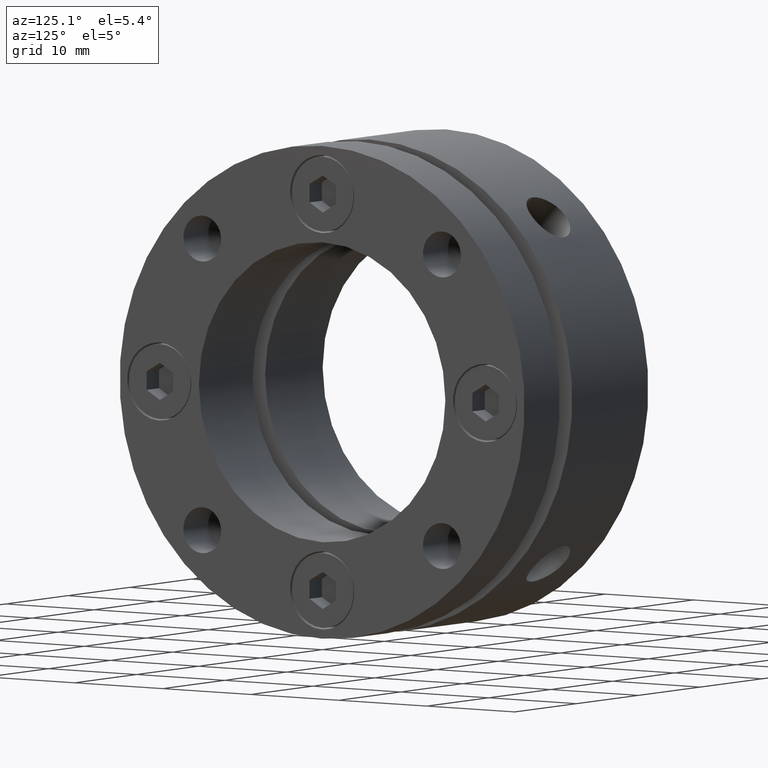
[diagram: clean part render]
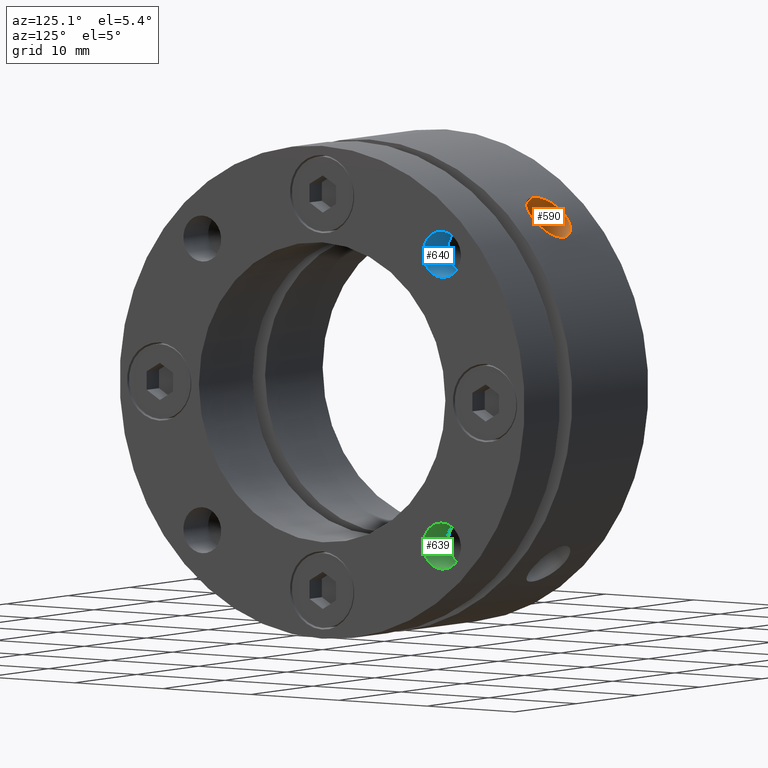
[diagram: same view with three faces highlighted in distinct colors, each labeled with its STEP entity id]
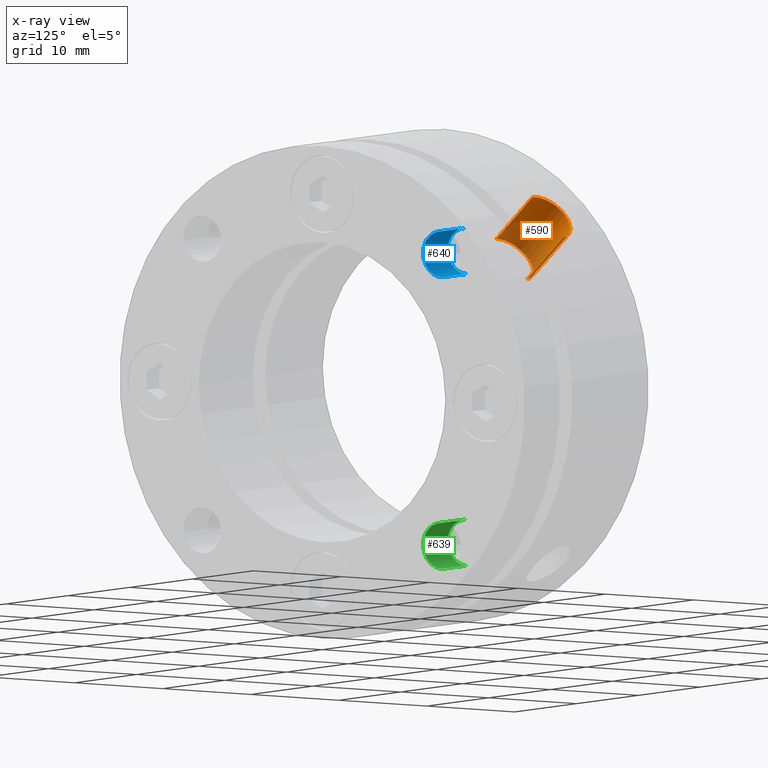
[diagram: x-ray of the same camera — body ghosted, the three highlighted faces saturated]
A machine part, auxiliary view with three faces highlighted in distinct colors.
The next image is the same camera in x-ray (body ghosted, the three faces saturated) — at least one of them is partly hidden behind the body in this view.
Their STEP definitions:

[orange] entity #590 — the highlighted cylindrical surface (edge-blend (fillet) strip) has radius 2.5 mm, axis along (0, 0.7071, 0.7071).
#190 = CIRCLE ( 'NONE', #2259, 2.500000000000000000 ) ;
#194 = LINE ( 'NONE', #756, #202 ) ;
#202 = VECTOR ( 'NONE', #754, 1000.000000000000000 ) ;
#204 = LINE ( 'NONE', #762, #210 ) ;
#210 = VECTOR ( 'NONE', #764, 1000.000000000000000 ) ;
#590 = ADVANCED_FACE ( 'NONE', ( #1877 ), #1889, .F. ) ;
#754 = DIRECTION ( 'NONE',  ( 0.0000000000000000000, 0.7071067811865480200, 0.7071067811865470200 ) ) ;
#756 = CARTESIAN_POINT ( 'NONE',  ( 6.499999999999992900, 15.90990257669731500, 12.37436867076457900 ) ) ;
#757 = CARTESIAN_POINT ( 'NONE',  ( 6.499999999999992900, 12.02081528017130400, 12.02081528017130600 ) ) ;
#758 = DIRECTION ( 'NONE',  ( 0.0000000000000000000, 0.7071067811865480200, 0.7071067811865470200 ) ) ;
#759 = DIRECTION ( 'NONE',  ( 0.0000000000000000000, -0.7071067811865471300, 0.7071067811865477900 ) ) ;
#762 = CARTESIAN_POINT ( 'NONE',  ( 6.499999999999992900, 12.37436867076458000, 15.90990257669731800 ) ) ;
#764 = DIRECTION ( 'NONE',  ( 0.0000000000000000000, 0.7071067811865480200, 0.7071067811865470200 ) ) ;
#1550 = EDGE_CURVE ( 'NONE', #2061, #2039, #2201, .T. ) ;
#1584 = VERTEX_POINT ( 'NONE', #3460 ) ;
#1735 = EDGE_LOOP ( 'NONE', ( #2428, #2416, #2411, #2419 ) ) ;
#1877 = FACE_OUTER_BOUND ( 'NONE', #1735, .T. ) ;
#1889 = CYLINDRICAL_SURFACE ( 'NONE', #2763, 2.500000000000000900 ) ;
#2039 = VERTEX_POINT ( 'NONE', #3504 ) ;
#2061 = VERTEX_POINT ( 'NONE', #3509 ) ;
#2084 = VERTEX_POINT ( 'NONE', #3514 ) ;
#2173 = EDGE_CURVE ( 'NONE', #1584, #2084, #190, .T. ) ;
#2174 = EDGE_CURVE ( 'NONE', #1584, #2039, #194, .T. ) ;
#2176 = EDGE_CURVE ( 'NONE', #2084, #2061, #204, .T. ) ;
#2201 = B_SPLINE_CURVE_WITH_KNOTS ( 'NONE', 3,
 ( #3396, #3390, #3389, #3398, #3399, #3400, #3401, #3402, #3403, #3404, #3405, #3406, #3407, #3408, #3409, #3410, #3411, #3412, #3413, #3414, #3415, #3416, #3417, #3418, #3419, #3420, #3421, #3422, #3423, #3424, #3425, #3426, #3427, #3428 ),
 .UNSPECIFIED., .F., .F.,
 ( 4, 2, 2, 2, 2, 2, 2, 2, 2, 2, 2, 2, 2, 2, 2, 2, 4 ),
 ( 0.01173203666589973600, 0.01222079723062375100, 0.01270955779534776500, 0.01319831836007178000, 0.01368707892479579400, 0.01417583948951980900, 0.01466460005424382500, 0.01515336061896784000, 0.01564212118369185500, 0.01613088174841586700, 0.01661964231313988300, 0.01710840287786389800, 0.01759716344258791300, 0.01808592400731192500, 0.01857468457203594000, 0.01906344513675995600, 0.01955220570148397100 ),
 .UNSPECIFIED. ) ;
#2259 = AXIS2_PLACEMENT_3D ( 'NONE', #757, #758, #759 ) ;
#2411 = ORIENTED_EDGE ( 'NONE', *, *, #1550, .F. ) ;
#2416 = ORIENTED_EDGE ( 'NONE', *, *, #2174, .T. ) ;
#2419 = ORIENTED_EDGE ( 'NONE', *, *, #2176, .F. ) ;
#2428 = ORIENTED_EDGE ( 'NONE', *, *, #2173, .F. ) ;
#2763 = AXIS2_PLACEMENT_3D ( 'NONE', #2834, #2832, #2830 ) ;
#2830 = DIRECTION ( 'NONE',  ( 0.0000000000000000000, -0.7071067811865469100, 0.7071067811865482400 ) ) ;
#2832 = DIRECTION ( 'NONE',  ( 0.0000000000000000000, 0.7071067811865480200, 0.7071067811865470200 ) ) ;
#2834 = CARTESIAN_POINT ( 'NONE',  ( 6.499999999999992900, 14.14213562373094900, 14.14213562373094700 ) ) ;
#3389 = CARTESIAN_POINT ( 'NONE',  ( 6.171102901603271500, 14.41216090793918700, 17.92458236981219600 ) ) ;
#3390 = CARTESIAN_POINT ( 'NONE',  ( 6.336840459598379400, 14.39932926125837300, 17.93486316719110700 ) ) ;
#3396 = CARTESIAN_POINT ( 'NONE',  ( 6.499999999999992900, 14.39932926125837700, 17.93486316719111100 ) ) ;
#3398 = CARTESIAN_POINT ( 'NONE',  ( 5.850465051990689800, 14.46225276498936700, 17.88419078767809000 ) ) ;
#3399 = CARTESIAN_POINT ( 'NONE',  ( 5.694608925028116900, 14.49924360081081800, 17.85429659411093800 ) ) ;
#3400 = CARTESIAN_POINT ( 'NONE',  ( 5.391866361067417100, 14.59687094377545300, 17.77456977023350900 ) ) ;
#3401 = CARTESIAN_POINT ( 'NONE',  ( 5.245693593263251100, 14.65762908045115500, 17.72462032379313600 ) ) ;
#3402 = CARTESIAN_POINT ( 'NONE',  ( 4.975037160429696600, 14.79721221434494200, 17.60825847624769100 ) ) ;
#3403 = CARTESIAN_POINT ( 'NONE',  ( 4.848797256688280700, 14.87656166324814700, 17.54142540692781400 ) ) ;
#3404 = CARTESIAN_POINT ( 'NONE',  ( 4.615486003709182100, 15.05427292907757700, 17.38915060617047800 ) ) ;
#3405 = CARTESIAN_POINT ( 'NONE',  ( 4.512194291995237800, 15.14973626805983600, 17.30618008855913100 ) ) ;
#3406 = CARTESIAN_POINT ( 'NONE',  ( 4.331248595438681000, 15.35268844401171900, 17.12639295912939700 ) ) ;
#3407 = CARTESIAN_POINT ( 'NONE',  ( 4.252965674583988300, 15.46144843888305300, 17.02840453041887200 ) ) ;
#3408 = CARTESIAN_POINT ( 'NONE',  ( 4.127586607234826000, 15.68441056547584500, 16.82326406775506600 ) ) ;
#3409 = CARTESIAN_POINT ( 'NONE',  ( 4.080308539167020900, 15.79812566890847400, 16.71660624396046300 ) ) ;
#3410 = CARTESIAN_POINT ( 'NONE',  ( 4.016348914198122300, 16.02960746437178900, 16.49476836770977400 ) ) ;
#3411 = CARTESIAN_POINT ( 'NONE',  ( 3.999881091137385900, 16.14789131451339800, 16.37903889859849500 ) ) ;
#3412 = CARTESIAN_POINT ( 'NONE',  ( 4.000120217522239200, 16.38157850645534100, 16.14531494842948300 ) ) ;
#3413 = CARTESIAN_POINT ( 'NONE',  ( 4.016461892319392200, 16.49519475888739400, 16.02916398250377500 ) ) ;
#3414 = CARTESIAN_POINT ( 'NONE',  ( 4.080253025106302700, 16.71637913028129300, 15.79836120881904200 ) ) ;
#3415 = CARTESIAN_POINT ( 'NONE',  ( 4.128487812702765300, 16.82507034814032900, 15.68247214119517000 ) ) ;
#3416 = CARTESIAN_POINT ( 'NONE',  ( 4.254195086601696700, 17.03007860652548200, 15.45960372502466700 ) ) ;
#3417 = CARTESIAN_POINT ( 'NONE',  ( 4.331076147975760900, 17.12624316824564400, 15.35285949734156400 ) ) ;
#3418 = CARTESIAN_POINT ( 'NONE',  ( 4.512660700614278900, 17.30662192348992100, 15.14923553848080000 ) ) ;
#3419 = CARTESIAN_POINT ( 'NONE',  ( 4.618243013717113300, 17.39107269779781700, 15.05204047201509000 ) ) ;
#3420 = CARTESIAN_POINT ( 'NONE',  ( 4.848826217899987700, 17.54132013783785400, 14.87667367972937700 ) ) ;
#3421 = CARTESIAN_POINT ( 'NONE',  ( 4.974655792185040500, 17.60815476262315100, 14.79734061598587900 ) ) ;
#3422 = CARTESIAN_POINT ( 'NONE',  ( 5.247992481309276900, 17.72554800207590700, 14.65651225483390100 ) ) ;
#3423 = CARTESIAN_POINT ( 'NONE',  ( 5.393328429897668900, 17.77497907359862200, 14.59637062372967800 ) ) ;
#3424 = CARTESIAN_POINT ( 'NONE',  ( 5.694133033975091100, 17.85414691956000900, 14.49942599646322000 ) ) ;
#3425 = CARTESIAN_POINT ( 'NONE',  ( 5.851830797393867900, 17.88446681320556000, 14.46191152070790400 ) ) ;
#3426 = CARTESIAN_POINT ( 'NONE',  ( 6.174565697121749100, 17.92491304055546000, 14.41174973811161000 ) ) ;
#3427 = CARTESIAN_POINT ( 'NONE',  ( 6.336840169103265200, 17.93486316719111400, 14.39932926125837300 ) ) ;
#3428 = CARTESIAN_POINT ( 'NONE',  ( 6.499999999999992900, 17.93486316719111400, 14.39932926125837100 ) ) ;
#3460 = CARTESIAN_POINT ( 'NONE',  ( 6.499999999999992900, 13.78858223070574200, 10.25304832963686500 ) ) ;
#3504 = CARTESIAN_POINT ( 'NONE',  ( 6.499999999999992900, 17.93486316719111400, 14.39932926125837100 ) ) ;
#3509 = CARTESIAN_POINT ( 'NONE',  ( 6.499999999999992900, 14.39932926125837700, 17.93486316719111100 ) ) ;
#3514 = CARTESIAN_POINT ( 'NONE',  ( 6.499999999999992900, 10.25304832963686900, 13.78858223070574400 ) ) ;

[blue] entity #640 — the highlighted cylindrical surface (edge-blend (fillet) strip) has radius 2.15 mm, axis along (1, 0, 0).
#179 = CIRCLE ( 'NONE', #2300, 2.150000000000000800 ) ;
#185 = CIRCLE ( 'NONE', #2301, 2.150000000000000800 ) ;
#217 = LINE ( 'NONE', #998, #223 ) ;
#223 = VECTOR ( 'NONE', #988, 1000.000000000000000 ) ;
#400 = LINE ( 'NONE', #931, #411 ) ;
#411 = VECTOR ( 'NONE', #937, 1000.000000000000000 ) ;
#640 = ADVANCED_FACE ( 'NONE', ( #1978 ), #1987, .F. ) ;
#931 = CARTESIAN_POINT ( 'NONE',  ( 17.99999999999999600, 13.61180553784104300, 15.76180553784104000 ) ) ;
#937 = DIRECTION ( 'NONE',  ( 1.000000000000000000, 0.0000000000000000000, 0.0000000000000000000 ) ) ;
#951 = CARTESIAN_POINT ( 'NONE',  ( 19.99999999999999600, 13.61180553784104300, 13.61180553784103800 ) ) ;
#952 = DIRECTION ( 'NONE',  ( -1.000000000000000000, -0.0000000000000000000, -0.0000000000000000000 ) ) ;
#953 = DIRECTION ( 'NONE',  ( 0.0000000000000000000, 0.0000000000000000000, -1.000000000000000000 ) ) ;
#955 = CARTESIAN_POINT ( 'NONE',  ( 15.99999999999999600, 13.61180553784104300, 13.61180553784103800 ) ) ;
#956 = DIRECTION ( 'NONE',  ( 1.000000000000000000, 0.0000000000000000000, 0.0000000000000000000 ) ) ;
#957 = DIRECTION ( 'NONE',  ( 0.0000000000000000000, 0.0000000000000000000, -1.000000000000000000 ) ) ;
#988 = DIRECTION ( 'NONE',  ( 1.000000000000000000, 0.0000000000000000000, 0.0000000000000000000 ) ) ;
#998 = CARTESIAN_POINT ( 'NONE',  ( 17.99999999999999600, 13.61180553784104300, 11.46180553784103800 ) ) ;
#1051 = CARTESIAN_POINT ( 'NONE',  ( 15.99999999999999600, 13.61180553784104300, 15.76180553504201100 ) ) ;
#1067 = CARTESIAN_POINT ( 'NONE',  ( 15.99999999999999600, 13.61180553784104300, 11.46180554064006300 ) ) ;
#1083 = CARTESIAN_POINT ( 'NONE',  ( 19.99999999999999600, 13.61180553784104300, 15.76180553784104000 ) ) ;
#1093 = CARTESIAN_POINT ( 'NONE',  ( 19.99999999999999600, 13.61180553784104300, 11.46180553784103800 ) ) ;
#1469 = ORIENTED_EDGE ( 'NONE', *, *, #2381, .F. ) ;
#1771 = EDGE_LOOP ( 'NONE', ( #1469, #2229, #2223, #2218 ) ) ;
#1978 = FACE_OUTER_BOUND ( 'NONE', #1771, .T. ) ;
#1987 = CYLINDRICAL_SURFACE ( 'NONE', #2578, 2.150000000000000800 ) ;
#2218 = ORIENTED_EDGE ( 'NONE', *, *, #2397, .F. ) ;
#2223 = ORIENTED_EDGE ( 'NONE', *, *, #2380, .F. ) ;
#2229 = ORIENTED_EDGE ( 'NONE', *, *, #2374, .T. ) ;
#2300 = AXIS2_PLACEMENT_3D ( 'NONE', #951, #952, #953 ) ;
#2301 = AXIS2_PLACEMENT_3D ( 'NONE', #955, #956, #957 ) ;
#2374 = EDGE_CURVE ( 'NONE', #2605, #2648, #400, .T. ) ;
#2380 = EDGE_CURVE ( 'NONE', #2660, #2648, #179, .T. ) ;
#2381 = EDGE_CURVE ( 'NONE', #2605, #2633, #185, .T. ) ;
#2397 = EDGE_CURVE ( 'NONE', #2633, #2660, #217, .T. ) ;
#2578 = AXIS2_PLACEMENT_3D ( 'NONE', #2995, #2993, #2991 ) ;
#2605 = VERTEX_POINT ( 'NONE', #1051 ) ;
#2633 = VERTEX_POINT ( 'NONE', #1067 ) ;
#2648 = VERTEX_POINT ( 'NONE', #1083 ) ;
#2660 = VERTEX_POINT ( 'NONE', #1093 ) ;
#2991 = DIRECTION ( 'NONE',  ( 0.0000000000000000000, 0.0000000000000000000, -1.000000000000000000 ) ) ;
#2993 = DIRECTION ( 'NONE',  ( 1.000000000000000000, 0.0000000000000000000, 0.0000000000000000000 ) ) ;
#2995 = CARTESIAN_POINT ( 'NONE',  ( 17.99999999999999600, 13.61180553784104300, 13.61180553784103800 ) ) ;

[green] entity #639 — the highlighted cylindrical surface (edge-blend (fillet) strip) has radius 2.15 mm, axis along (1, 0, 0).
#189 = LINE ( 'NONE', #965, #199 ) ;
#197 = CIRCLE ( 'NONE', #2307, 2.150000000000000800 ) ;
#199 = VECTOR ( 'NONE', #969, 1000.000000000000000 ) ;
#231 = LINE ( 'NONE', #1014, #237 ) ;
#237 = VECTOR ( 'NONE', #1015, 1000.000000000000000 ) ;
#239 = CIRCLE ( 'NONE', #2318, 2.150000000000000800 ) ;
#639 = ADVANCED_FACE ( 'NONE', ( #1976 ), #1985, .F. ) ;
#965 = CARTESIAN_POINT ( 'NONE',  ( 17.99999999999999600, 13.61180553784104000, -15.76180553784104400 ) ) ;
#969 = DIRECTION ( 'NONE',  ( 1.000000000000000000, 0.0000000000000000000, 0.0000000000000000000 ) ) ;
#976 = CARTESIAN_POINT ( 'NONE',  ( 15.99999999999999600, 13.61180553784104000, -13.61180553784104100 ) ) ;
#977 = DIRECTION ( 'NONE',  ( 1.000000000000000000, 0.0000000000000000000, 0.0000000000000000000 ) ) ;
#978 = DIRECTION ( 'NONE',  ( 0.0000000000000000000, 0.0000000000000000000, -1.000000000000000000 ) ) ;
#1014 = CARTESIAN_POINT ( 'NONE',  ( 17.99999999999999600, 13.61180553784104000, -11.46180553784104100 ) ) ;
#1015 = DIRECTION ( 'NONE',  ( 1.000000000000000000, 0.0000000000000000000, 0.0000000000000000000 ) ) ;
#1017 = CARTESIAN_POINT ( 'NONE',  ( 19.99999999999999600, 13.61180553784104000, -13.61180553784104100 ) ) ;
#1018 = DIRECTION ( 'NONE',  ( -1.000000000000000000, -0.0000000000000000000, -0.0000000000000000000 ) ) ;
#1019 = DIRECTION ( 'NONE',  ( 0.0000000000000000000, 0.0000000000000000000, -1.000000000000000000 ) ) ;
#1045 = CARTESIAN_POINT ( 'NONE',  ( 19.99999999999999600, 13.61180553784104000, -15.76180553784104400 ) ) ;
#1055 = CARTESIAN_POINT ( 'NONE',  ( 15.99999999999999600, 13.61180553784104000, -11.46180554064006800 ) ) ;
#1061 = CARTESIAN_POINT ( 'NONE',  ( 19.99999999999999600, 13.61180553784104000, -11.46180553784104100 ) ) ;
#1078 = CARTESIAN_POINT ( 'NONE',  ( 15.99999999999999600, 13.61180553784104000, -15.76180553504201500 ) ) ;
#1470 = ORIENTED_EDGE ( 'NONE', *, *, #2386, .F. ) ;
#1472 = ORIENTED_EDGE ( 'NONE', *, *, #2404, .F. ) ;
#1480 = ORIENTED_EDGE ( 'NONE', *, *, #2402, .T. ) ;
#1481 = ORIENTED_EDGE ( 'NONE', *, *, #2389, .F. ) ;
#1770 = EDGE_LOOP ( 'NONE', ( #1481, #1480, #1472, #1470 ) ) ;
#1976 = FACE_OUTER_BOUND ( 'NONE', #1770, .T. ) ;
#1985 = CYLINDRICAL_SURFACE ( 'NONE', #2577, 2.150000000000000800 ) ;
#2307 = AXIS2_PLACEMENT_3D ( 'NONE', #976, #977, #978 ) ;
#2318 = AXIS2_PLACEMENT_3D ( 'NONE', #1017, #1018, #1019 ) ;
#2386 = EDGE_CURVE ( 'NONE', #2642, #2598, #189, .T. ) ;
#2389 = EDGE_CURVE ( 'NONE', #2611, #2642, #197, .T. ) ;
#2402 = EDGE_CURVE ( 'NONE', #2611, #2618, #231, .T. ) ;
#2404 = EDGE_CURVE ( 'NONE', #2598, #2618, #239, .T. ) ;
#2577 = AXIS2_PLACEMENT_3D ( 'NONE', #2992, #2990, #2988 ) ;
#2598 = VERTEX_POINT ( 'NONE', #1045 ) ;
#2611 = VERTEX_POINT ( 'NONE', #1055 ) ;
#2618 = VERTEX_POINT ( 'NONE', #1061 ) ;
#2642 = VERTEX_POINT ( 'NONE', #1078 ) ;
#2988 = DIRECTION ( 'NONE',  ( 0.0000000000000000000, 0.0000000000000000000, -1.000000000000000000 ) ) ;
#2990 = DIRECTION ( 'NONE',  ( 1.000000000000000000, 0.0000000000000000000, 0.0000000000000000000 ) ) ;
#2992 = CARTESIAN_POINT ( 'NONE',  ( 17.99999999999999600, 13.61180553784104000, -13.61180553784104100 ) ) ;